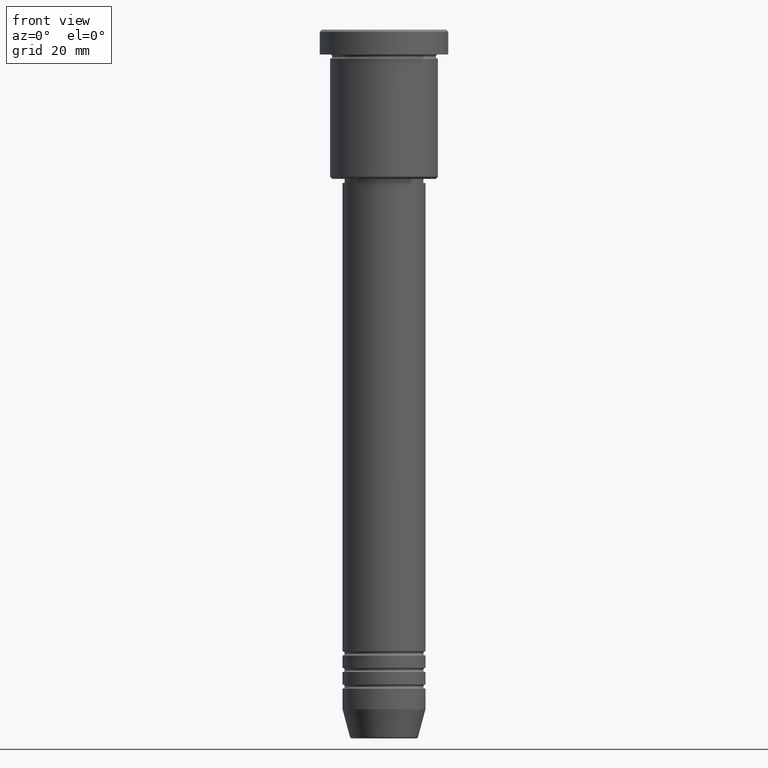
[diagram: clean part render]
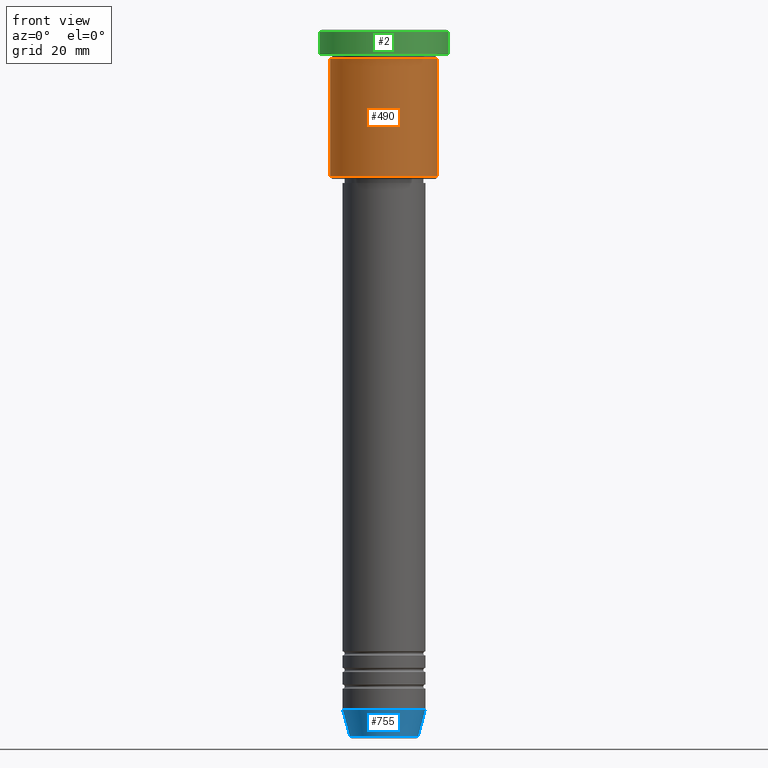
[diagram: same view with three faces highlighted in distinct colors, each labeled with its STEP entity id]
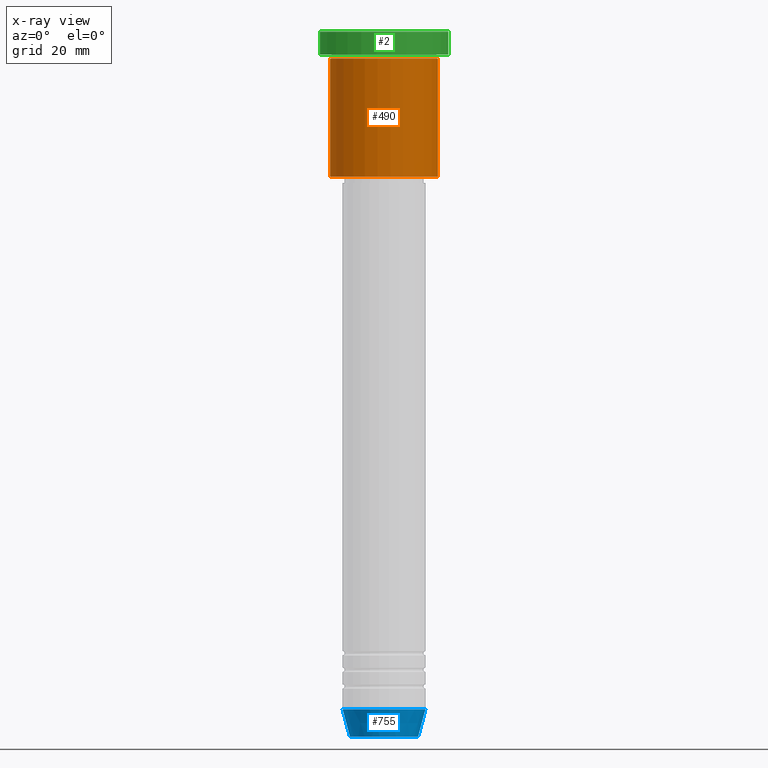
[diagram: x-ray of the same camera — body ghosted, the three highlighted faces saturated]
A machine part, front view with three faces highlighted in distinct colors.
The next image is the same camera in x-ray (body ghosted, the three faces saturated) — at least one of them is partly hidden behind the body in this view.
Their STEP definitions:

[orange] entity #490 — the highlighted cylindrical surface (partial cylindrical patch) has radius 13 mm, axis along (-0, -0, 1).
#61 = CARTESIAN_POINT ( 'NONE',  ( 0.000000000000000000, 0.000000000000000000, 0.000000000000000000 ) ) ;
#63 = CIRCLE ( 'NONE', #1150, 13.00000000000000178 ) ;
#126 = EDGE_CURVE ( 'NONE', #1091, #486, #1140, .T. ) ;
#194 = ORIENTED_EDGE ( 'NONE', *, *, #764, .F. ) ;
#234 = CARTESIAN_POINT ( 'NONE',  ( 13.00000000000000178, 0.000000000000000000, -6.999999999999995559 ) ) ;
#239 = FACE_OUTER_BOUND ( 'NONE', #562, .T. ) ;
#242 = DIRECTION ( 'NONE',  ( 1.000000000000000000, 0.000000000000000000, 0.000000000000000000 ) ) ;
#278 = AXIS2_PLACEMENT_3D ( 'NONE', #61, #804, #783 ) ;
#294 = DIRECTION ( 'NONE',  ( -0.000000000000000000, -0.000000000000000000, 1.000000000000000000 ) ) ;
#333 = DIRECTION ( 'NONE',  ( -0.000000000000000000, -0.000000000000000000, 1.000000000000000000 ) ) ;
#351 = CARTESIAN_POINT ( 'NONE',  ( 13.00000000000000178, 0.000000000000000000, 0.000000000000000000 ) ) ;
#371 = AXIS2_PLACEMENT_3D ( 'NONE', #604, #1057, #242 ) ;
#411 = CARTESIAN_POINT ( 'NONE',  ( -13.00000000000000178, 1.592040838891559293E-15, -35.49999999999999289 ) ) ;
#478 = VERTEX_POINT ( 'NONE', #411 ) ;
#486 = VERTEX_POINT ( 'NONE', #234 ) ;
#490 = ADVANCED_FACE ( 'NONE', ( #239 ), #993, .T. ) ;
#542 = LINE ( 'NONE', #915, #1097 ) ;
#547 = CARTESIAN_POINT ( 'NONE',  ( -13.00000000000000178, 1.592040838891559293E-15, -6.999999999999995559 ) ) ;
#562 = EDGE_LOOP ( 'NONE', ( #194, #730, #725, #866 ) ) ;
#603 = EDGE_CURVE ( 'NONE', #478, #1180, #63, .T. ) ;
#604 = CARTESIAN_POINT ( 'NONE',  ( 0.000000000000000000, 0.000000000000000000, -6.999999999999995559 ) ) ;
#637 = DIRECTION ( 'NONE',  ( -0.000000000000000000, -0.000000000000000000, 1.000000000000000000 ) ) ;
#654 = EDGE_CURVE ( 'NONE', #1180, #486, #1105, .T. ) ;
#725 = ORIENTED_EDGE ( 'NONE', *, *, #654, .T. ) ;
#730 = ORIENTED_EDGE ( 'NONE', *, *, #603, .T. ) ;
#764 = EDGE_CURVE ( 'NONE', #478, #1091, #542, .T. ) ;
#783 = DIRECTION ( 'NONE',  ( 1.000000000000000000, 0.000000000000000000, 0.000000000000000000 ) ) ;
#804 = DIRECTION ( 'NONE',  ( -0.000000000000000000, -0.000000000000000000, 1.000000000000000000 ) ) ;
#805 = VECTOR ( 'NONE', #637, 1000.000000000000000 ) ;
#815 = CARTESIAN_POINT ( 'NONE',  ( 13.00000000000000178, 0.000000000000000000, -35.49999999999999289 ) ) ;
#866 = ORIENTED_EDGE ( 'NONE', *, *, #126, .F. ) ;
#915 = CARTESIAN_POINT ( 'NONE',  ( -13.00000000000000178, 1.592040838891559293E-15, 0.000000000000000000 ) ) ;
#993 = CYLINDRICAL_SURFACE ( 'NONE', #278, 13.00000000000000178 ) ;
#1057 = DIRECTION ( 'NONE',  ( -0.000000000000000000, -0.000000000000000000, 1.000000000000000000 ) ) ;
#1091 = VERTEX_POINT ( 'NONE', #547 ) ;
#1097 = VECTOR ( 'NONE', #294, 1000.000000000000000 ) ;
#1105 = LINE ( 'NONE', #351, #805 ) ;
#1140 = CIRCLE ( 'NONE', #371, 13.00000000000000178 ) ;
#1150 = AXIS2_PLACEMENT_3D ( 'NONE', #1170, #333, #1165 ) ;
#1165 = DIRECTION ( 'NONE',  ( -1.000000000000000000, 0.000000000000000000, 0.000000000000000000 ) ) ;
#1170 = CARTESIAN_POINT ( 'NONE',  ( 0.000000000000000000, 0.000000000000000000, -35.49999999999999289 ) ) ;
#1180 = VERTEX_POINT ( 'NONE', #815 ) ;

[blue] entity #755 — the highlighted conical surface has half-angle 15 deg.
#48 = DIRECTION ( 'NONE',  ( -0.000000000000000000, -0.000000000000000000, 1.000000000000000000 ) ) ;
#68 = DIRECTION ( 'NONE',  ( 0.2588190451025210725, 0.000000000000000000, 0.9659258262890680902 ) ) ;
#69 = EDGE_CURVE ( 'NONE', #408, #498, #263, .T. ) ;
#121 = EDGE_CURVE ( 'NONE', #605, #1094, #580, .T. ) ;
#129 = EDGE_LOOP ( 'NONE', ( #1014, #461, #991, #581 ) ) ;
#142 = EDGE_CURVE ( 'NONE', #1094, #498, #598, .T. ) ;
#217 = DIRECTION ( 'NONE',  ( 1.000000000000000000, 0.000000000000000000, 0.000000000000000000 ) ) ;
#263 = CIRCLE ( 'NONE', #663, 10.00000000000000000 ) ;
#269 = CARTESIAN_POINT ( 'NONE',  ( 0.000000000000000000, 0.000000000000000000, -164.0000000000000284 ) ) ;
#272 = CARTESIAN_POINT ( 'NONE',  ( 8.223655072137185940, 0.000000000000000000, -170.6294095225513274 ) ) ;
#279 = FACE_OUTER_BOUND ( 'NONE', #129, .T. ) ;
#334 = VECTOR ( 'NONE', #68, 1000.000000000000114 ) ;
#336 = DIRECTION ( 'NONE',  ( 1.000000000000000000, 0.000000000000000000, 0.000000000000000000 ) ) ;
#404 = CARTESIAN_POINT ( 'NONE',  ( -10.00000000000000000, 1.224646799147353256E-15, -164.0000000000000284 ) ) ;
#407 = DIRECTION ( 'NONE',  ( -0.000000000000000000, -0.000000000000000000, 1.000000000000000000 ) ) ;
#408 = VERTEX_POINT ( 'NONE', #404 ) ;
#422 = AXIS2_PLACEMENT_3D ( 'NONE', #269, #450, #652 ) ;
#446 = EDGE_CURVE ( 'NONE', #605, #408, #1114, .T. ) ;
#450 = DIRECTION ( 'NONE',  ( -0.000000000000000000, -0.000000000000000000, 1.000000000000000000 ) ) ;
#461 = ORIENTED_EDGE ( 'NONE', *, *, #121, .T. ) ;
#468 = AXIS2_PLACEMENT_3D ( 'NONE', #1046, #407, #217 ) ;
#498 = VERTEX_POINT ( 'NONE', #1146 ) ;
#579 = CARTESIAN_POINT ( 'NONE',  ( 10.00000000000000000, 0.000000000000000000, -164.0000000000000284 ) ) ;
#580 = CIRCLE ( 'NONE', #468, 8.223655072137185940 ) ;
#581 = ORIENTED_EDGE ( 'NONE', *, *, #69, .F. ) ;
#598 = LINE ( 'NONE', #579, #334 ) ;
#605 = VERTEX_POINT ( 'NONE', #1064 ) ;
#652 = DIRECTION ( 'NONE',  ( 1.000000000000000000, 0.000000000000000000, 0.000000000000000000 ) ) ;
#653 = CARTESIAN_POINT ( 'NONE',  ( -10.00000000000000000, 1.224646799147353256E-15, -164.0000000000000284 ) ) ;
#663 = AXIS2_PLACEMENT_3D ( 'NONE', #1065, #48, #336 ) ;
#755 = ADVANCED_FACE ( 'NONE', ( #279 ), #946, .T. ) ;
#773 = DIRECTION ( 'NONE',  ( -0.2588190451025210725, 3.169619151431769255E-17, 0.9659258262890680902 ) ) ;
#918 = VECTOR ( 'NONE', #773, 1000.000000000000114 ) ;
#946 = CONICAL_SURFACE ( 'NONE', #422, 10.00000000000000000, 0.2617993877991497964 ) ;
#991 = ORIENTED_EDGE ( 'NONE', *, *, #142, .T. ) ;
#1014 = ORIENTED_EDGE ( 'NONE', *, *, #446, .F. ) ;
#1046 = CARTESIAN_POINT ( 'NONE',  ( 0.000000000000000000, 0.000000000000000000, -170.6294095225513274 ) ) ;
#1064 = CARTESIAN_POINT ( 'NONE',  ( -8.223655072137185940, 1.115877042642911659E-15, -170.6294095225513274 ) ) ;
#1065 = CARTESIAN_POINT ( 'NONE',  ( 0.000000000000000000, 0.000000000000000000, -164.0000000000000284 ) ) ;
#1094 = VERTEX_POINT ( 'NONE', #272 ) ;
#1114 = LINE ( 'NONE', #653, #918 ) ;
#1146 = CARTESIAN_POINT ( 'NONE',  ( 10.00000000000000000, 0.000000000000000000, -164.0000000000000284 ) ) ;

[green] entity #2 — the highlighted cylindrical surface (partial cylindrical patch) has radius 15.5 mm, axis along (-0, -0, 1).
#2 = ADVANCED_FACE ( 'NONE', ( #464 ), #832, .T. ) ;
#56 = EDGE_CURVE ( 'NONE', #659, #537, #607, .T. ) ;
#77 = DIRECTION ( 'NONE',  ( -0.000000000000000000, -0.000000000000000000, 1.000000000000000000 ) ) ;
#94 = AXIS2_PLACEMENT_3D ( 'NONE', #508, #503, #329 ) ;
#115 = CARTESIAN_POINT ( 'NONE',  ( 0.000000000000000000, 0.000000000000000000, 0.000000000000000000 ) ) ;
#154 = EDGE_CURVE ( 'NONE', #537, #1120, #412, .T. ) ;
#156 = AXIS2_PLACEMENT_3D ( 'NONE', #466, #445, #1005 ) ;
#184 = EDGE_LOOP ( 'NONE', ( #201, #878, #1031, #599 ) ) ;
#201 = ORIENTED_EDGE ( 'NONE', *, *, #587, .F. ) ;
#220 = VECTOR ( 'NONE', #774, 1000.000000000000000 ) ;
#225 = VERTEX_POINT ( 'NONE', #1100 ) ;
#329 = DIRECTION ( 'NONE',  ( 1.000000000000000000, 0.000000000000000000, 0.000000000000000000 ) ) ;
#412 = LINE ( 'NONE', #515, #220 ) ;
#439 = CARTESIAN_POINT ( 'NONE',  ( 15.50000000000000000, 0.000000000000000000, -5.999999999999995559 ) ) ;
#445 = DIRECTION ( 'NONE',  ( 0.000000000000000000, 0.000000000000000000, -1.000000000000000000 ) ) ;
#464 = FACE_OUTER_BOUND ( 'NONE', #184, .T. ) ;
#466 = CARTESIAN_POINT ( 'NONE',  ( 0.000000000000000000, 0.000000000000000000, -0.4999999999999848455 ) ) ;
#503 = DIRECTION ( 'NONE',  ( -0.000000000000000000, -0.000000000000000000, 1.000000000000000000 ) ) ;
#508 = CARTESIAN_POINT ( 'NONE',  ( 0.000000000000000000, 0.000000000000000000, -5.999999999999995559 ) ) ;
#515 = CARTESIAN_POINT ( 'NONE',  ( 15.50000000000000000, 0.000000000000000000, 0.000000000000000000 ) ) ;
#537 = VERTEX_POINT ( 'NONE', #439 ) ;
#538 = CARTESIAN_POINT ( 'NONE',  ( -15.50000000000000000, 1.898202538678397557E-15, -5.999999999999995559 ) ) ;
#570 = VECTOR ( 'NONE', #77, 1000.000000000000000 ) ;
#587 = EDGE_CURVE ( 'NONE', #659, #225, #899, .T. ) ;
#599 = ORIENTED_EDGE ( 'NONE', *, *, #715, .T. ) ;
#602 = CARTESIAN_POINT ( 'NONE',  ( -15.50000000000000000, 1.898202538678397557E-15, 0.000000000000000000 ) ) ;
#607 = CIRCLE ( 'NONE', #94, 15.50000000000000000 ) ;
#659 = VERTEX_POINT ( 'NONE', #538 ) ;
#715 = EDGE_CURVE ( 'NONE', #1120, #225, #1112, .T. ) ;
#774 = DIRECTION ( 'NONE',  ( -0.000000000000000000, -0.000000000000000000, 1.000000000000000000 ) ) ;
#821 = CARTESIAN_POINT ( 'NONE',  ( 15.50000000000000000, 0.000000000000000000, -0.4999999999999848455 ) ) ;
#832 = CYLINDRICAL_SURFACE ( 'NONE', #1016, 15.50000000000000000 ) ;
#851 = DIRECTION ( 'NONE',  ( -0.000000000000000000, -0.000000000000000000, 1.000000000000000000 ) ) ;
#878 = ORIENTED_EDGE ( 'NONE', *, *, #56, .T. ) ;
#899 = LINE ( 'NONE', #602, #570 ) ;
#1005 = DIRECTION ( 'NONE',  ( 1.000000000000000000, 0.000000000000000000, 0.000000000000000000 ) ) ;
#1016 = AXIS2_PLACEMENT_3D ( 'NONE', #115, #851, #1126 ) ;
#1031 = ORIENTED_EDGE ( 'NONE', *, *, #154, .T. ) ;
#1100 = CARTESIAN_POINT ( 'NONE',  ( -15.50000000000000000, 1.898202538678397557E-15, -0.4999999999999848455 ) ) ;
#1112 = CIRCLE ( 'NONE', #156, 15.50000000000000000 ) ;
#1120 = VERTEX_POINT ( 'NONE', #821 ) ;
#1126 = DIRECTION ( 'NONE',  ( 1.000000000000000000, 0.000000000000000000, 0.000000000000000000 ) ) ;